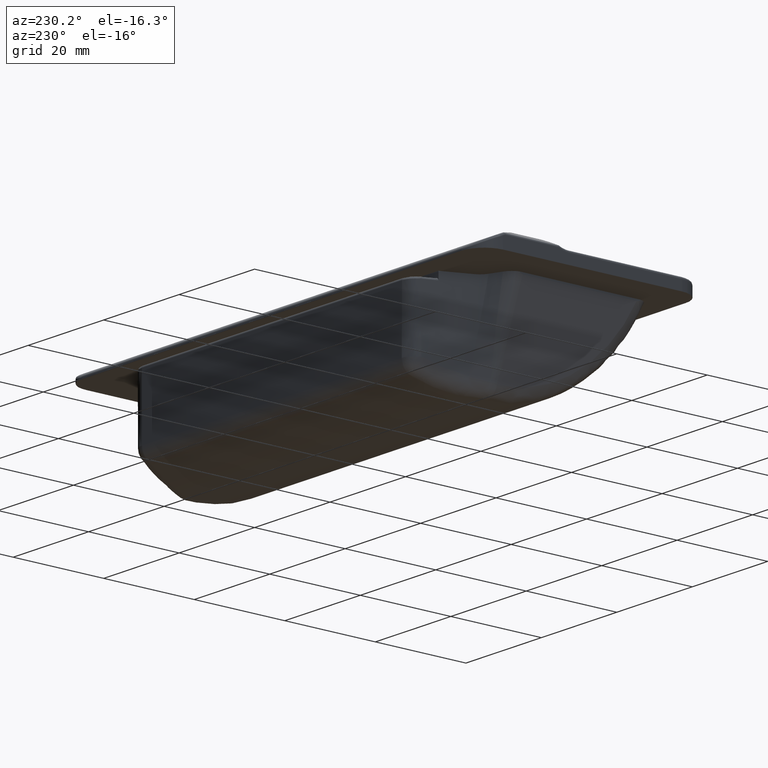
[diagram: clean part render]
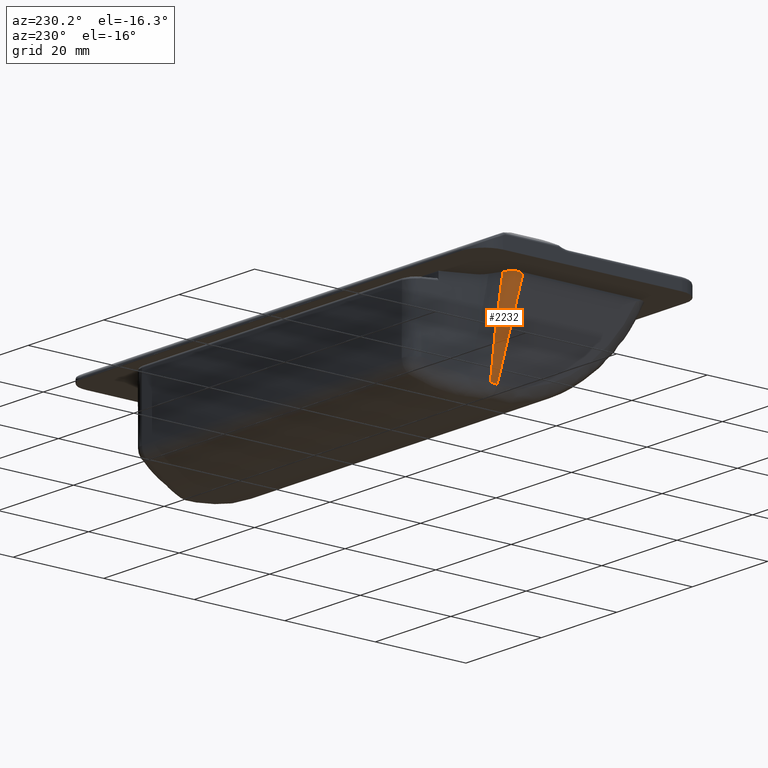
[diagram: same view with one face highlighted and labeled with its STEP entity id]
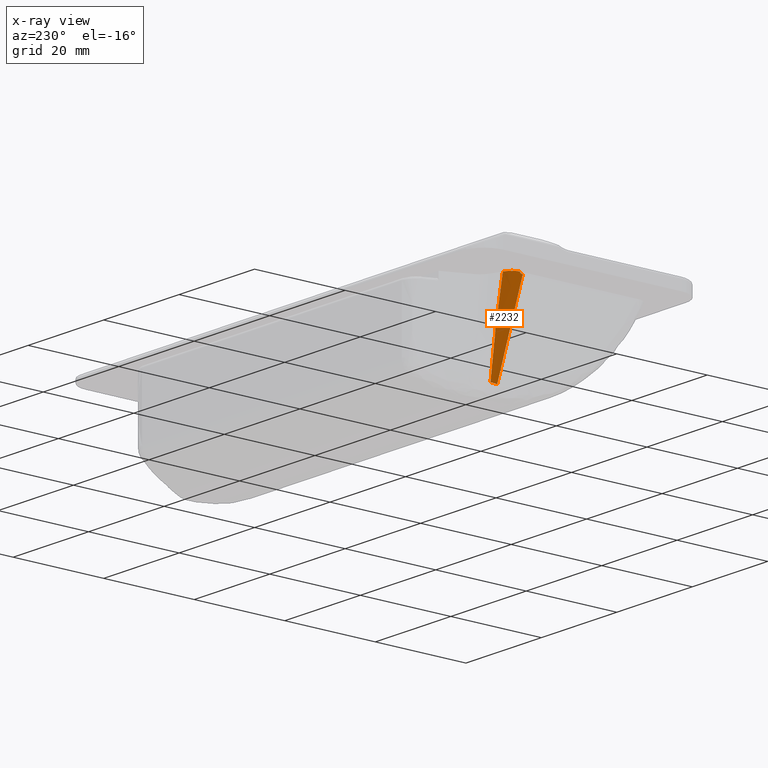
[diagram: x-ray of the same camera — body ghosted, the highlighted face saturated]
A machine part, auxiliary view. The second image highlights one B-rep face of the part: STEP entity #2232.
The next image is the same camera in x-ray: the body ghosted, the highlighted face saturated — about 0% of this face is hidden behind the body in this view.
In plain terms, the highlighted face is a freeform B-spline surface patch.
Its self-contained STEP definition (entity closure, byte-faithful):
#413=FACE_OUTER_BOUND('',#557,.T.);
#557=EDGE_LOOP('',(#1850,#1851,#1852,#1853,#1854));
#688=CIRCLE('',#2436,3.);
#775=B_SPLINE_CURVE_WITH_KNOTS('',3,(#4327,#4328,#4329,#4330,#4331,#4332,
#4333,#4334,#4335,#4336,#4337,#4338,#4339,#4340,#4341,#4342),
 .UNSPECIFIED.,.F.,.F.,(4,3,3,3,3,4),(0.0771441812973616,0.114277842656841,
0.157963059582239,0.231939171380781,0.3000862417347,0.367907873669044),
 .UNSPECIFIED.);
#789=B_SPLINE_CURVE_WITH_KNOTS('',3,(#4654,#4655,#4656,#4657,#4658),
 .UNSPECIFIED.,.F.,.F.,(4,1,4),(1.32000060644863E-6,0.780339353899662,1.90353374263161),
 .UNSPECIFIED.);
#790=B_SPLINE_CURVE_WITH_KNOTS('',3,(#4660,#4661,#4662,#4663,#4664),
 .UNSPECIFIED.,.F.,.F.,(4,1,4),(-1.90353374263161,-0.780339353899662,0.0299325968577971),
 .UNSPECIFIED.);
#791=B_SPLINE_CURVE_WITH_KNOTS('',3,(#4665,#4666,#4667,#4668,#4669,#4670,
#4671,#4672),.UNSPECIFIED.,.F.,.F.,(4,2,2,4),(0.,0.0300058903368063,0.0661282892802097,
0.0853443536347846),.UNSPECIFIED.);
#984=VERTEX_POINT('',#4324);
#985=VERTEX_POINT('',#4326);
#1008=VERTEX_POINT('',#4578);
#1009=VERTEX_POINT('',#4580);
#1011=VERTEX_POINT('',#4659);
#1272=EDGE_CURVE('',#985,#984,#775,.T.);
#1308=EDGE_CURVE('',#1008,#1009,#688,.F.);
#1312=EDGE_CURVE('',#984,#1008,#789,.T.);
#1313=EDGE_CURVE('',#1009,#1011,#790,.T.);
#1314=EDGE_CURVE('',#1011,#985,#791,.T.);
#1850=ORIENTED_EDGE('',*,*,#1272,.T.);
#1851=ORIENTED_EDGE('',*,*,#1312,.T.);
#1852=ORIENTED_EDGE('',*,*,#1308,.T.);
#1853=ORIENTED_EDGE('',*,*,#1313,.T.);
#1854=ORIENTED_EDGE('',*,*,#1314,.T.);
#2108=B_SPLINE_SURFACE_WITH_KNOTS('',3,3,((#4629,#4630,#4631,#4632,#4633),
(#4634,#4635,#4636,#4637,#4638),(#4639,#4640,#4641,#4642,#4643),(#4644,
#4645,#4646,#4647,#4648),(#4649,#4650,#4651,#4652,#4653)),.UNSPECIFIED.,
 .F.,.F.,.F.,(4,1,4),(4,1,4),(0.,0.571428571428571,1.),(-0.0620564376492957,
0.780339353899662,1.90353374263161),.UNSPECIFIED.);
#2232=ADVANCED_FACE('',(#413),#2108,.F.);
#2436=AXIS2_PLACEMENT_3D('',#4582,#2884,#2885);
#2884=DIRECTION('center_axis',(0.249147389568903,0.0832608861108627,-0.964879890512304));
#2885=DIRECTION('ref_axis',(-0.881852093612954,0.43133670470736,-0.190487616822315));
#4324=CARTESIAN_POINT('',(-45.0244495628977,36.0059470480197,8.36258737239716E-16));
#4326=CARTESIAN_POINT('',(-46.9,33.9263157122278,0.));
#4327=CARTESIAN_POINT('Ctrl Pts',(-46.8995075237352,33.9265533501847,0.000144930510134946));
#4328=CARTESIAN_POINT('Ctrl Pts',(-46.8677142699664,34.0457044333717,0.000149989087457428));
#4329=CARTESIAN_POINT('Ctrl Pts',(-46.8285667187333,34.1630366486973,0.000134983177486266));
#4330=CARTESIAN_POINT('Ctrl Pts',(-46.7822095857904,34.2778520856293,0.00011011624831473));
#4331=CARTESIAN_POINT('Ctrl Pts',(-46.7276763840195,34.4129176729757,8.08635059675798E-5));
#4332=CARTESIAN_POINT('Ctrl Pts',(-46.6635702176183,34.5435125706965,4.28999109653625E-5));
#4333=CARTESIAN_POINT('Ctrl Pts',(-46.5903699754315,34.6686070217786,4.65974287016475E-5));
#4334=CARTESIAN_POINT('Ctrl Pts',(-46.4664134134452,34.8804407209092,5.28587684564858E-5));
#4335=CARTESIAN_POINT('Ctrl Pts',(-46.3164619292344,35.0765693560029,0.000162871781224959));
#4336=CARTESIAN_POINT('Ctrl Pts',(-46.1450018926722,35.253986325028,0.000202413765321291));
#4337=CARTESIAN_POINT('Ctrl Pts',(-45.9870522669023,35.4174234992208,0.000238839988687601));
#4338=CARTESIAN_POINT('Ctrl Pts',(-45.8120426402341,35.5637153817701,0.000215416320192169));
#4339=CARTESIAN_POINT('Ctrl Pts',(-45.6233046801843,35.6904261329724,0.000155477982482811));
#4340=CARTESIAN_POINT('Ctrl Pts',(-45.4354680440375,35.8165317731054,9.58258821390963E-5));
#4341=CARTESIAN_POINT('Ctrl Pts',(-45.2349080076262,35.9226562794289,4.57903681533634E-6));
#4342=CARTESIAN_POINT('Ctrl Pts',(-45.0245334024682,36.0060360491766,2.48295412078048E-6));
#4578=CARTESIAN_POINT('',(-41.8235527531855,36.0925777719655,-18.864693064085));
#4580=CARTESIAN_POINT('',(-42.0827219774417,34.7985676578434,-19.043276705544));
#4582=CARTESIAN_POINT('Origin',(-39.1779964723467,34.7985676578434,-18.2932302136181));
#4629=CARTESIAN_POINT('Ctrl Pts',(-45.1330357653518,35.9789284118141,0.609707064157295));
#4630=CARTESIAN_POINT('Ctrl Pts',(-44.6394057144416,36.1027587935142,-2.14834388469029));
#4631=CARTESIAN_POINT('Ctrl Pts',(-43.5737983849759,36.3576302882903,-8.6087310605569));
#4632=CARTESIAN_POINT('Ctrl Pts',(-42.5509605939165,36.2447614890519,-15.1525958574892));
#4633=CARTESIAN_POINT('Ctrl Pts',(-41.8235527531855,36.0925777719655,-18.864693064085));
#4634=CARTESIAN_POINT('Ctrl Pts',(-45.7601889912208,35.7385363712229,0.429794923830504));
#4635=CARTESIAN_POINT('Ctrl Pts',(-45.2087130082961,35.8275252152528,-2.31701450979559));
#4636=CARTESIAN_POINT('Ctrl Pts',(-43.9740364006196,36.0068509893024,-8.74391780046678));
#4637=CARTESIAN_POINT('Ctrl Pts',(-42.7314718032926,35.945656790208,-15.2261774698201));
#4638=CARTESIAN_POINT('Ctrl Pts',(-41.9259544420441,35.8627871195056,-18.910963783632));
#4639=CARTESIAN_POINT('Ctrl Pts',(-46.697854571363,34.9068875955927,0.125502517752221));
#4640=CARTESIAN_POINT('Ctrl Pts',(-46.0374132865402,35.0019071954523,-2.59655603739482));
#4641=CARTESIAN_POINT('Ctrl Pts',(-44.5063274505244,35.2197714193797,-8.95373520159765));
#4642=CARTESIAN_POINT('Ctrl Pts',(-42.9608632425142,35.3691915934628,-15.3373106628177));
#4643=CARTESIAN_POINT('Ctrl Pts',(-42.0543565970299,35.4358412299235,-18.9809610501123));
#4644=CARTESIAN_POINT('Ctrl Pts',(-46.9895160379634,33.6923993981546,-0.0406015257054791));
#4645=CARTESIAN_POINT('Ctrl Pts',(-46.2891055601718,33.862936491861,-2.75227044897011));
#4646=CARTESIAN_POINT('Ctrl Pts',(-44.6556633903409,34.2916364649214,-9.07826650309395));
#4647=CARTESIAN_POINT('Ctrl Pts',(-43.0213008322948,34.7515355278299,-15.4084682583532));
#4648=CARTESIAN_POINT('Ctrl Pts',(-42.086715539466,34.9897474071039,-19.0278107289772));
#4649=CARTESIAN_POINT('Ctrl Pts',(-46.9801031740986,33.1722659045043,-0.0770549803093182));
#4650=CARTESIAN_POINT('Ctrl Pts',(-46.2798982107574,33.3749866912233,-2.78875783833964));
#4651=CARTESIAN_POINT('Ctrl Pts',(-44.6469161737606,33.8938402721311,-9.11285190889082));
#4652=CARTESIAN_POINT('Ctrl Pts',(-43.0155253861035,34.4868403766273,-15.4307835047266));
#4653=CARTESIAN_POINT('Ctrl Pts',(-42.0827219774417,34.7985676578434,-19.043276705544));
#4654=CARTESIAN_POINT('Ctrl Pts',(-45.0245311068159,36.0060366198259,-1.04898333478515E-5));
#4655=CARTESIAN_POINT('Ctrl Pts',(-44.572161481075,36.1184858746584,-2.55636273239161));
#4656=CARTESIAN_POINT('Ctrl Pts',(-43.5415052750542,36.3540667862645,-8.81533444092366));
#4657=CARTESIAN_POINT('Ctrl Pts',(-42.5509605939165,36.2447614890519,-15.1525958574892));
#4658=CARTESIAN_POINT('Ctrl Pts',(-41.8235527531855,36.0925777719655,-18.864693064085));
#4659=CARTESIAN_POINT('',(-46.8999999951034,33.1955385702833,-0.387272746235836));
#4660=CARTESIAN_POINT('Ctrl Pts',(-42.0827219774417,34.7985676578434,-19.043276705544));
#4661=CARTESIAN_POINT('Ctrl Pts',(-43.0155253861035,34.4868403766273,-15.4307835047266));
#4662=CARTESIAN_POINT('Ctrl Pts',(-44.6202541877285,33.9035317333204,-9.21610650934227));
#4663=CARTESIAN_POINT('Ctrl Pts',(-46.2265226518107,33.3919658495198,-2.99546682116974));
#4664=CARTESIAN_POINT('Ctrl Pts',(-46.9000000736522,33.1955428788858,-0.38727244203775));
#4665=CARTESIAN_POINT('Ctrl Pts',(-46.9,33.1955385674281,-0.387272727272794));
#4666=CARTESIAN_POINT('Ctrl Pts',(-46.9,33.2955582018842,-0.387272727272793));
#4667=CARTESIAN_POINT('Ctrl Pts',(-46.9,33.3920711148929,-0.367374857921891));
#4668=CARTESIAN_POINT('Ctrl Pts',(-46.9,33.5966128294178,-0.285142333040502));
#4669=CARTESIAN_POINT('Ctrl Pts',(-46.9,33.6978430709985,-0.217052296579901));
#4670=CARTESIAN_POINT('Ctrl Pts',(-46.9,33.8365064434141,-0.095341841788269));
#4671=CARTESIAN_POINT('Ctrl Pts',(-46.9,33.8824909434267,-0.0491032322364069));
#4672=CARTESIAN_POINT('Ctrl Pts',(-46.9,33.9263157122278,2.77555756156289E-16));